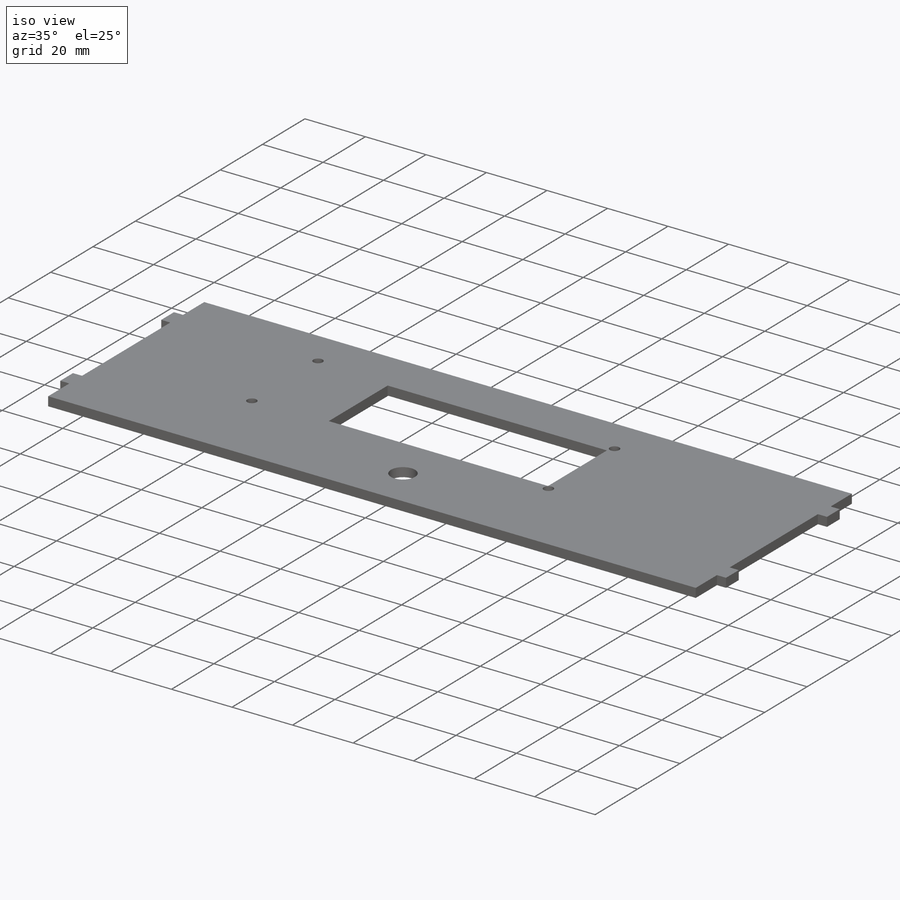
[diagram: iso view]
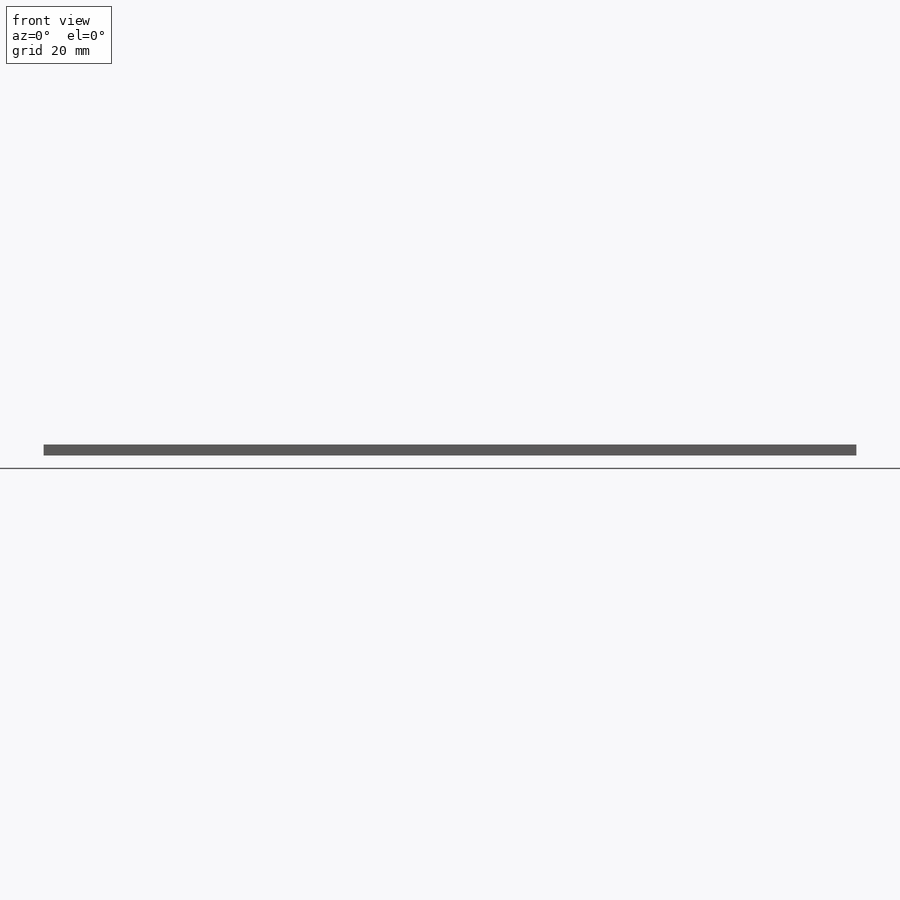
[diagram: front view]
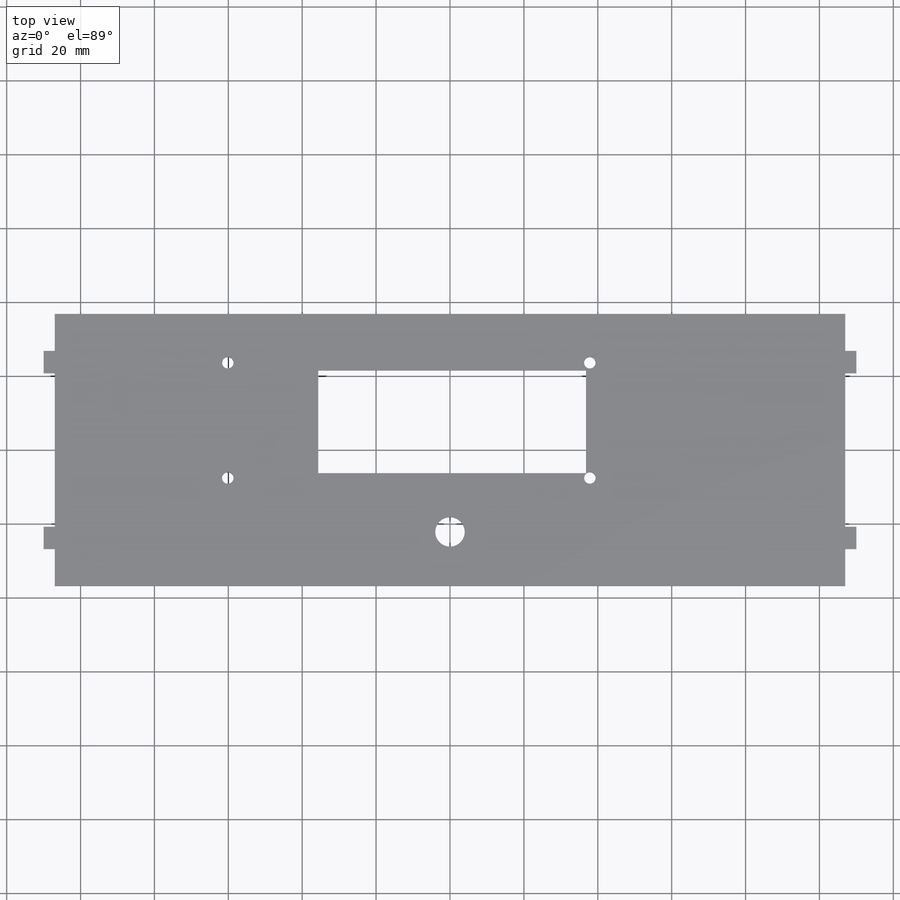
[diagram: top view]
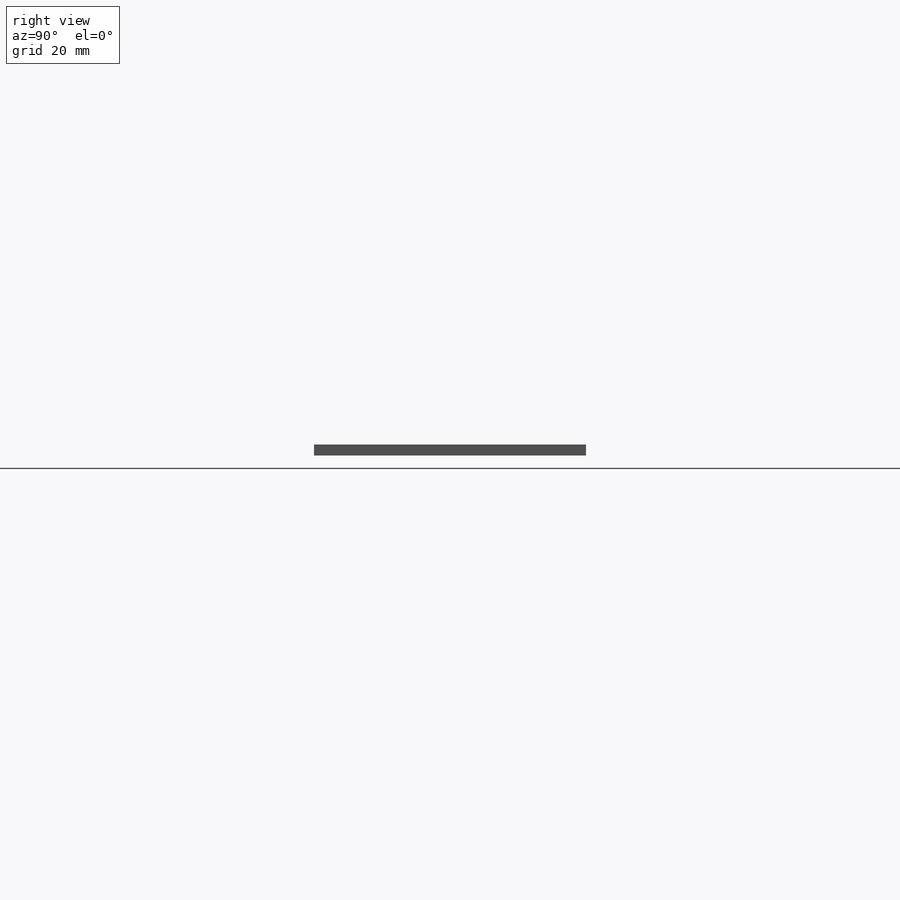
[diagram: right view]
SOLIDWORKS PART (.sldprt)
format: sldprt  version: not decoded by parser v0  size: 489,472 bytes
history: native  units: mm
features: sketch x5, plane x3, cut_extrude x3, extrude x2, material x1 (+8 scaffold rows collapsed)
feature tree (22):
  scaffold x8  (default folders/planes/origin — collapsed)
  material  "Material <sin especificar>"
  plane  "Alzado"
  plane  "Planta"
  plane  "Vista lateral"
  sketch  "Croquis1"  dims[D1=214.0mm D2=73.64mm]
  extrude  "Saliente-Extruir1"  Depth=3mm
  sketch  "Croquis2"  dims[c1.D1=8.0mm c1.D2=30.0mm c1.D3=2.3mm c1.D4=2.0mm c1.D5=59.0mm c2.D2=0.0mm c2.D3=107.0mm]
  sketch  "Croquis3"  dims[D1=3.0mm D2=3.0mm D3=6.0mm D4=6.0mm D5=10.0mm D6=10.0mm D7=6.0mm D8=3.0mm D9=3.0mm D10=6.0mm D11=10.0mm D12=10.0mm]
  extrude  "Saliente-Extruir2"  [1 undecoded]
  cut_extrude  "Cortar-Extruir1"  [1 undecoded]
  sketch  "Croquis5"  dims[c1.D5=3.1mm c1.D6=3.1mm c1.D7=3.1mm c1.D8=3.1mm c1.D1=103.0mm c1.D2=36.0mm c1.D3=4.0mm c1.D4=4.5mm c1.D9=2.4mm c1.D10=2.0mm c1.D11=2.0mm c1.D12=2.4mm c1.D13=2.4mm c1.D14=2.4mm c1.D15=2.4mm c1.D16=2.4mm c2.D1=~13.215006mm c2.D2=46.85mm c2.D3=~29.224994mm c2.D4=46.85mm c2.D9=~29.224994mm c2.D10=69.15mm c2.D11=~13.215006mm c2.D12=69.15mm]
  cut_extrude  "Cortar-Extruir3"  [1 undecoded]
  sketch  "Croquis6"  dims[c1.D1=72.45mm c1.D2=27.8mm c1.D3=3.75mm c1.D4=5.75mm c2.D3=15.2mm c2.D4=24.5mm]
  cut_extrude  "Cortar-Extruir4"  [1 undecoded]
decode coverage: 6 of 10 modeling features carry decoded parameters
note: ~ marks probable driven/reference dimensions
note: 4 parameter values undecoded
summary: no parameter record found for 4 features
note: suppression state not decoded; provenance and decode notes live in map.json
